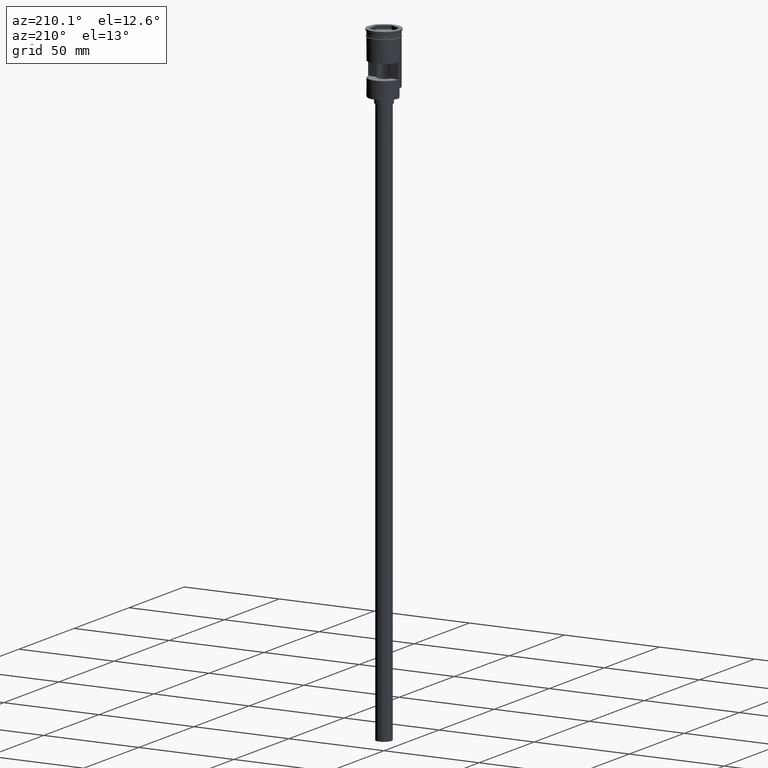
[diagram: clean part render]
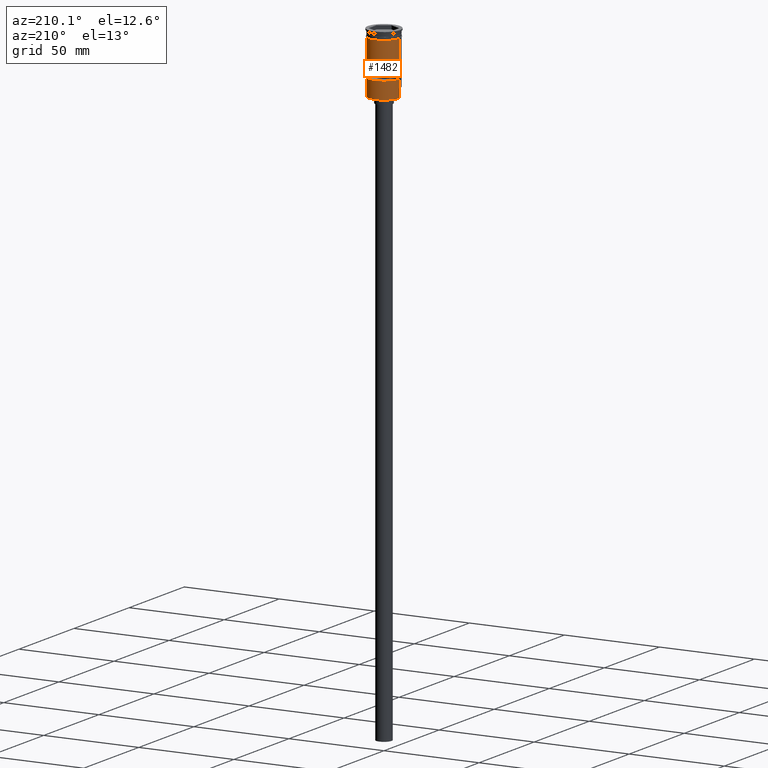
[diagram: same view with one face highlighted and labeled with its STEP entity id]
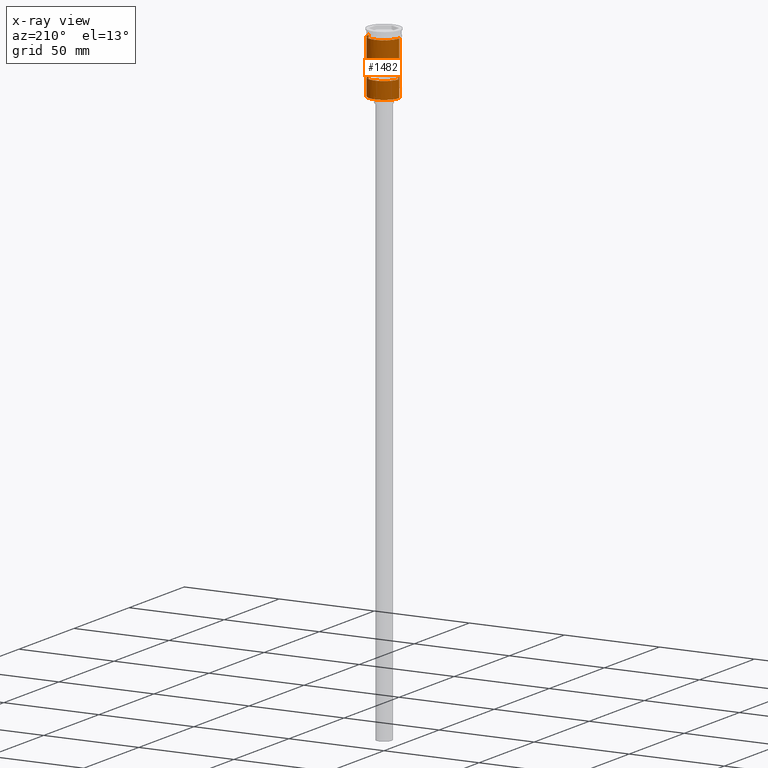
[diagram: x-ray of the same camera — body ghosted, the highlighted face saturated]
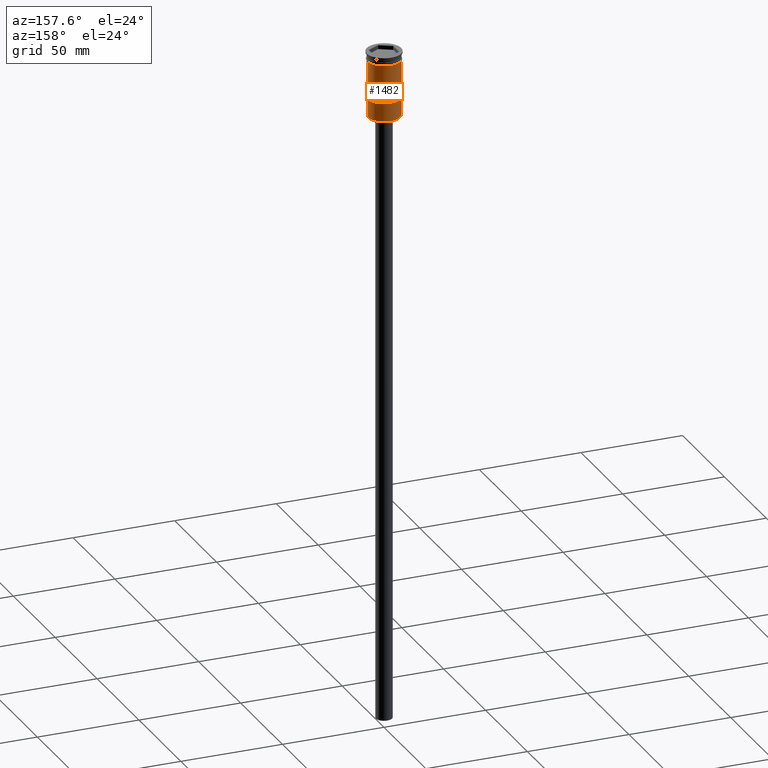
[diagram: same view with one face highlighted and labeled with its STEP entity id]
A machine part, auxiliary view. The second image highlights one B-rep face of the part: STEP entity #1482.
The next image is the same camera in x-ray: the body ghosted, the highlighted face saturated — about 0% of this face is hidden behind the body in this view.
A second angle (auxiliary view) of the same face is appended — the face is thin or edge-on in the first view.
In plain terms, the highlighted cylindrical surface (edge-blend (fillet) strip) has radius 8 mm, axis along (-0, -0, 1).
Its self-contained STEP definition (entity closure, byte-faithful):
#8 = LINE ( 'NONE', #280, #126 ) ;
#10 = DIRECTION ( 'NONE',  ( 0.000000000000000000, 0.000000000000000000, -1.000000000000000000 ) ) ;
#21 = CARTESIAN_POINT ( 'NONE',  ( 0.000000000000000000, 0.000000000000000000, -15.00000000000000000 ) ) ;
#70 = DIRECTION ( 'NONE',  ( -1.000000000000000000, 0.000000000000000000, 0.000000000000000000 ) ) ;
#75 = AXIS2_PLACEMENT_3D ( 'NONE', #850, #1566, #952 ) ;
#89 = VERTEX_POINT ( 'NONE', #1272 ) ;
#126 = VECTOR ( 'NONE', #1127, 1000.000000000000000 ) ;
#153 = CARTESIAN_POINT ( 'NONE',  ( 7.999999999999996447, 9.797174393178821713E-16, -27.30000000000006466 ) ) ;
#175 = CARTESIAN_POINT ( 'NONE',  ( -7.977468270071648604, 0.6000000000000000888, -15.00000000000000000 ) ) ;
#196 = CARTESIAN_POINT ( 'NONE',  ( -7.999999999999992895, 0.000000000000000000, -31.80000000000003624 ) ) ;
#209 = CARTESIAN_POINT ( 'NONE',  ( 7.999999999999992895, 9.797174393178817769E-16, -32.00000000000000000 ) ) ;
#246 = CIRCLE ( 'NONE', #1094, 8.000000000000000000 ) ;
#252 = LINE ( 'NONE', #623, #1268 ) ;
#280 = CARTESIAN_POINT ( 'NONE',  ( -7.999999999999996447, 9.797174393178821713E-16, 0.000000000000000000 ) ) ;
#282 = CARTESIAN_POINT ( 'NONE',  ( -7.977468270071648604, 0.6000000000000000888, -23.00000000000000000 ) ) ;
#312 = DIRECTION ( 'NONE',  ( -0.000000000000000000, -0.000000000000000000, 1.000000000000000000 ) ) ;
#336 = VERTEX_POINT ( 'NONE', #282 ) ;
#357 = DIRECTION ( 'NONE',  ( -0.000000000000000000, -0.000000000000000000, 1.000000000000000000 ) ) ;
#381 = CIRCLE ( 'NONE', #1288, 7.999999999999996447 ) ;
#392 = VERTEX_POINT ( 'NONE', #425 ) ;
#393 = ORIENTED_EDGE ( 'NONE', *, *, #1532, .F. ) ;
#401 = CIRCLE ( 'NONE', #921, 7.999999999999996447 ) ;
#420 = VECTOR ( 'NONE', #982, 1000.000000000000000 ) ;
#425 = CARTESIAN_POINT ( 'NONE',  ( 8.000000000000000000, 0.000000000000000000, -3.999999999999997335 ) ) ;
#426 = CARTESIAN_POINT ( 'NONE',  ( 0.000000000000000000, 0.000000000000000000, -23.00000000000000000 ) ) ;
#437 = DIRECTION ( 'NONE',  ( 0.000000000000000000, 0.000000000000000000, 1.000000000000000000 ) ) ;
#440 = CARTESIAN_POINT ( 'NONE',  ( -7.977468270071648604, 0.6000000000000000888, 0.000000000000000000 ) ) ;
#442 = VERTEX_POINT ( 'NONE', #1550 ) ;
#446 = CARTESIAN_POINT ( 'NONE',  ( 7.999999999999996447, 0.000000000000000000, 0.000000000000000000 ) ) ;
#482 = ORIENTED_EDGE ( 'NONE', *, *, #838, .T. ) ;
#488 = ORIENTED_EDGE ( 'NONE', *, *, #645, .T. ) ;
#528 = DIRECTION ( 'NONE',  ( -1.000000000000000000, 0.000000000000000000, 0.000000000000000000 ) ) ;
#531 = LINE ( 'NONE', #440, #1163 ) ;
#560 = EDGE_CURVE ( 'NONE', #89, #1071, #992, .T. ) ;
#594 = FACE_OUTER_BOUND ( 'NONE', #1400, .T. ) ;
#602 = VERTEX_POINT ( 'NONE', #1337 ) ;
#614 = CARTESIAN_POINT ( 'NONE',  ( -8.000000000000000000, 9.797174393178825657E-16, -3.999999999999997335 ) ) ;
#623 = CARTESIAN_POINT ( 'NONE',  ( 7.977468270071648604, 0.6000000000000000888, 0.000000000000000000 ) ) ;
#631 = ORIENTED_EDGE ( 'NONE', *, *, #560, .F. ) ;
#634 = DIRECTION ( 'NONE',  ( -0.000000000000000000, 2.344220913482172642E-16, -1.000000000000000000 ) ) ;
#645 = EDGE_CURVE ( 'NONE', #602, #1317, #8, .T. ) ;
#658 = DIRECTION ( 'NONE',  ( -0.000000000000000000, -0.000000000000000000, 1.000000000000000000 ) ) ;
#672 = VERTEX_POINT ( 'NONE', #803 ) ;
#680 = ORIENTED_EDGE ( 'NONE', *, *, #1280, .F. ) ;
#690 = DIRECTION ( 'NONE',  ( -0.000000000000000000, -0.000000000000000000, 1.000000000000000000 ) ) ;
#698 = EDGE_CURVE ( 'NONE', #336, #1469, #531, .T. ) ;
#720 = CARTESIAN_POINT ( 'NONE',  ( 0.000000000000000000, 0.000000000000000000, -3.999999999999997335 ) ) ;
#782 = ORIENTED_EDGE ( 'NONE', *, *, #698, .F. ) ;
#803 = CARTESIAN_POINT ( 'NONE',  ( 7.977468270071646828, 0.6000000000000000888, -15.00000000000000000 ) ) ;
#826 = EDGE_CURVE ( 'NONE', #392, #1317, #246, .T. ) ;
#838 = EDGE_CURVE ( 'NONE', #903, #602, #1588, .T. ) ;
#850 = CARTESIAN_POINT ( 'NONE',  ( 0.000000000000000000, 0.000000000000000000, 0.000000000000000000 ) ) ;
#903 = VERTEX_POINT ( 'NONE', #196 ) ;
#921 = AXIS2_PLACEMENT_3D ( 'NONE', #426, #1423, #70 ) ;
#933 = LINE ( 'NONE', #446, #1415 ) ;
#938 = ORIENTED_EDGE ( 'NONE', *, *, #1227, .F. ) ;
#939 = FACE_BOUND ( 'NONE', #1575, .T. ) ;
#952 = DIRECTION ( 'NONE',  ( 1.000000000000000000, 0.000000000000000000, 0.000000000000000000 ) ) ;
#982 = DIRECTION ( 'NONE',  ( -0.000000000000000000, -0.000000000000000000, 1.000000000000000000 ) ) ;
#992 = LINE ( 'NONE', #209, #420 ) ;
#1038 = CIRCLE ( 'NONE', #1144, 7.999999999999996447 ) ;
#1071 = VERTEX_POINT ( 'NONE', #153 ) ;
#1084 = CYLINDRICAL_SURFACE ( 'NONE', #75, 7.999999999999996447 ) ;
#1094 = AXIS2_PLACEMENT_3D ( 'NONE', #720, #357, #1564 ) ;
#1126 = EDGE_CURVE ( 'NONE', #672, #442, #252, .T. ) ;
#1127 = DIRECTION ( 'NONE',  ( -0.000000000000000000, -0.000000000000000000, 1.000000000000000000 ) ) ;
#1143 = ORIENTED_EDGE ( 'NONE', *, *, #826, .F. ) ;
#1144 = AXIS2_PLACEMENT_3D ( 'NONE', #21, #634, #1145 ) ;
#1145 = DIRECTION ( 'NONE',  ( 0.000000000000000000, -1.000000000000000000, -2.168404344971009854E-16 ) ) ;
#1163 = VECTOR ( 'NONE', #658, 1000.000000000000000 ) ;
#1185 = EDGE_CURVE ( 'NONE', #89, #903, #381, .T. ) ;
#1227 = EDGE_CURVE ( 'NONE', #1071, #392, #933, .T. ) ;
#1268 = VECTOR ( 'NONE', #10, 1000.000000000000000 ) ;
#1272 = CARTESIAN_POINT ( 'NONE',  ( 7.999999999999992895, 9.797174393178817769E-16, -31.80000000000003624 ) ) ;
#1273 = ORIENTED_EDGE ( 'NONE', *, *, #1126, .F. ) ;
#1280 = EDGE_CURVE ( 'NONE', #442, #336, #401, .T. ) ;
#1287 = VECTOR ( 'NONE', #690, 1000.000000000000000 ) ;
#1288 = AXIS2_PLACEMENT_3D ( 'NONE', #1551, #437, #528 ) ;
#1317 = VERTEX_POINT ( 'NONE', #614 ) ;
#1337 = CARTESIAN_POINT ( 'NONE',  ( -7.999999999999992895, 0.000000000000000000, -27.30000000000006466 ) ) ;
#1352 = CARTESIAN_POINT ( 'NONE',  ( -7.999999999999992895, 0.000000000000000000, -32.00000000000000000 ) ) ;
#1400 = EDGE_LOOP ( 'NONE', ( #482, #488, #1143, #938, #631, #1493 ) ) ;
#1415 = VECTOR ( 'NONE', #312, 1000.000000000000000 ) ;
#1423 = DIRECTION ( 'NONE',  ( 0.000000000000000000, 0.000000000000000000, 1.000000000000000000 ) ) ;
#1469 = VERTEX_POINT ( 'NONE', #175 ) ;
#1482 = ADVANCED_FACE ( 'NONE', ( #939, #594 ), #1084, .T. ) ;
#1493 = ORIENTED_EDGE ( 'NONE', *, *, #1185, .T. ) ;
#1532 = EDGE_CURVE ( 'NONE', #1469, #672, #1038, .T. ) ;
#1550 = CARTESIAN_POINT ( 'NONE',  ( 7.977468270071646828, 0.6000000000000000888, -23.00000000000000000 ) ) ;
#1551 = CARTESIAN_POINT ( 'NONE',  ( 0.000000000000000000, 0.000000000000000000, -31.80000000000003624 ) ) ;
#1564 = DIRECTION ( 'NONE',  ( 1.000000000000000000, 0.000000000000000000, 0.000000000000000000 ) ) ;
#1566 = DIRECTION ( 'NONE',  ( -0.000000000000000000, -0.000000000000000000, 1.000000000000000000 ) ) ;
#1575 = EDGE_LOOP ( 'NONE', ( #1273, #393, #782, #680 ) ) ;
#1588 = LINE ( 'NONE', #1352, #1287 ) ;